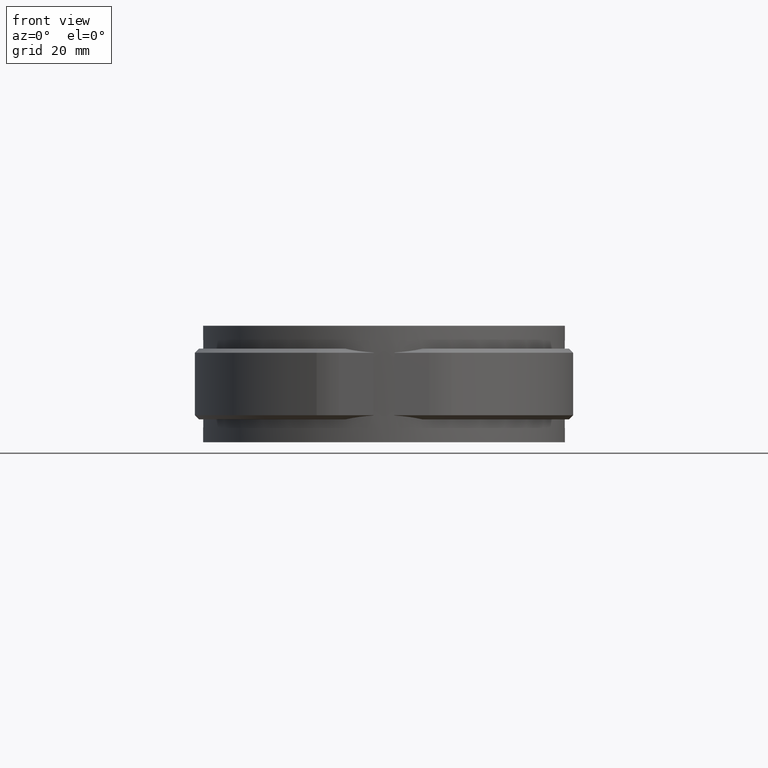
[diagram: clean part render]
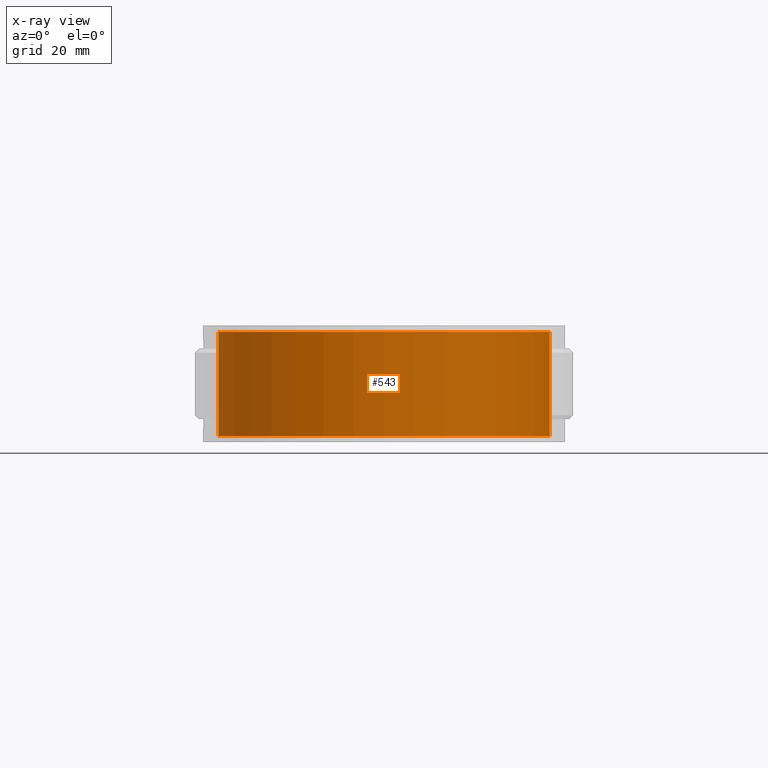
[diagram: x-ray — body ghosted, one internal face saturated and labeled with its STEP entity id]
A machine part, front view, then the same camera in x-ray: the body is ghosted and one INTERNAL B-rep face — a face not visible from any outside direction — is saturated and labeled: STEP entity #543.
In plain terms, the highlighted cylindrical surface (partial cylindrical patch) has radius 40 mm, axis along (0, 0, -1).
Its self-contained STEP definition (entity closure, byte-faithful):
#543 = ADVANCED_FACE( '', ( #995 ), #996, .T. );
#995 = FACE_OUTER_BOUND( '', #2032, .T. );
#996 = CYLINDRICAL_SURFACE( '', #2033, 40.0000000000000 );
#2032 = EDGE_LOOP( '', ( #4687, #4688, #4689, #4690 ) );
#2033 = AXIS2_PLACEMENT_3D( '', #4691, #4692, #4693 );
#4687 = ORIENTED_EDGE( '', *, *, #7498, .T. );
#4688 = ORIENTED_EDGE( '', *, *, #7545, .F. );
#4689 = ORIENTED_EDGE( '', *, *, #7546, .F. );
#4690 = ORIENTED_EDGE( '', *, *, #7547, .T. );
#4691 = CARTESIAN_POINT( '', ( 0.000000000000000, 0.000000000000000, -14.0000000000000 ) );
#4692 = DIRECTION( '', ( 0.000000000000000, 0.000000000000000, -1.00000000000000 ) );
#4693 = DIRECTION( '', ( 1.00000000000000, -6.07153216591883E-017, 0.000000000000000 ) );
#7498 = EDGE_CURVE( '', #8657, #8655, #8658, .T. );
#7545 = EDGE_CURVE( '', #8743, #8655, #8744, .T. );
#7546 = EDGE_CURVE( '', #8745, #8743, #8746, .T. );
#7547 = EDGE_CURVE( '', #8745, #8657, #8747, .T. );
#8655 = VERTEX_POINT( '', #11776 );
#8657 = VERTEX_POINT( '', #11778 );
#8658 = CIRCLE( '', #11779, 40.0000000000000 );
#8743 = VERTEX_POINT( '', #11959 );
#8744 = LINE( '', #11960, #11961 );
#8745 = VERTEX_POINT( '', #11962 );
#8746 = CIRCLE( '', #11963, 40.0000000000000 );
#8747 = LINE( '', #11964, #11965 );
#11776 = CARTESIAN_POINT( '', ( -6.51162790697674, 39.4664249964585, 12.5000000000000 ) );
#11778 = CARTESIAN_POINT( '', ( 6.51162790697675, 39.4664249964585, 12.5000000000000 ) );
#11779 = AXIS2_PLACEMENT_3D( '', #14556, #14557, #14558 );
#11959 = CARTESIAN_POINT( '', ( -6.51162790697675, 39.4664249964585, -12.5000000000000 ) );
#11960 = CARTESIAN_POINT( '', ( -6.51162790697675, 39.4664249964585, -14.0000000000000 ) );
#11961 = VECTOR( '', #14601, 1000.00000000000 );
#11962 = CARTESIAN_POINT( '', ( 6.51162790697675, 39.4664249964585, -12.5000000000000 ) );
#11963 = AXIS2_PLACEMENT_3D( '', #14602, #14603, #14604 );
#11964 = CARTESIAN_POINT( '', ( 6.51162790697675, 39.4664249964585, -14.0000000000000 ) );
#11965 = VECTOR( '', #14605, 1000.00000000000 );
#14556 = CARTESIAN_POINT( '', ( 0.000000000000000, 0.000000000000000, 12.5000000000000 ) );
#14557 = DIRECTION( '', ( 0.000000000000000, 0.000000000000000, -1.00000000000000 ) );
#14558 = DIRECTION( '', ( -1.00000000000000, 0.000000000000000, 0.000000000000000 ) );
#14601 = DIRECTION( '', ( 0.000000000000000, 0.000000000000000, 1.00000000000000 ) );
#14602 = CARTESIAN_POINT( '', ( 0.000000000000000, 0.000000000000000, -12.5000000000000 ) );
#14603 = DIRECTION( '', ( 0.000000000000000, 0.000000000000000, -1.00000000000000 ) );
#14604 = DIRECTION( '', ( -1.00000000000000, 0.000000000000000, 0.000000000000000 ) );
#14605 = DIRECTION( '', ( 0.000000000000000, 0.000000000000000, 1.00000000000000 ) );